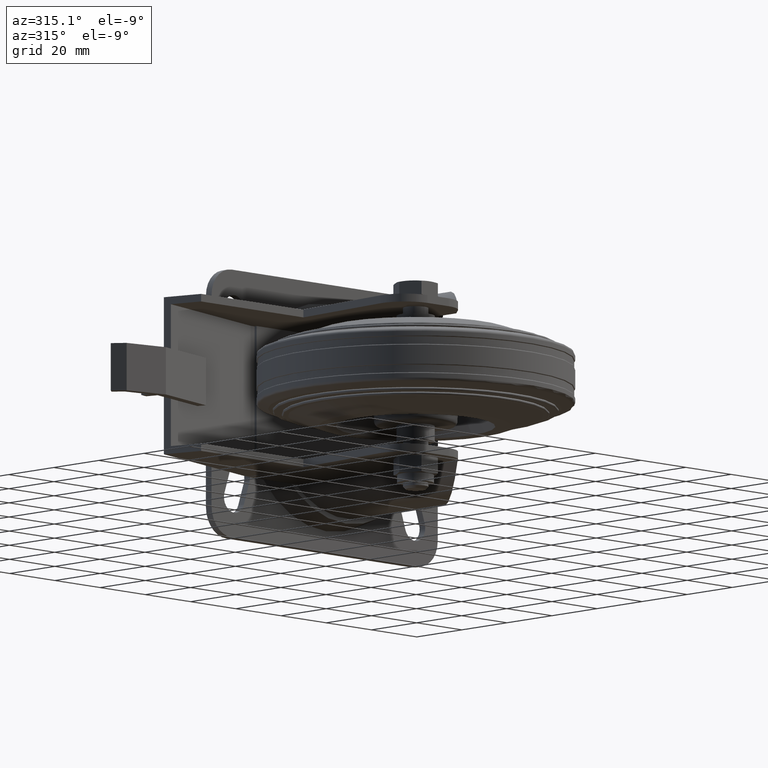
[diagram: clean part render]
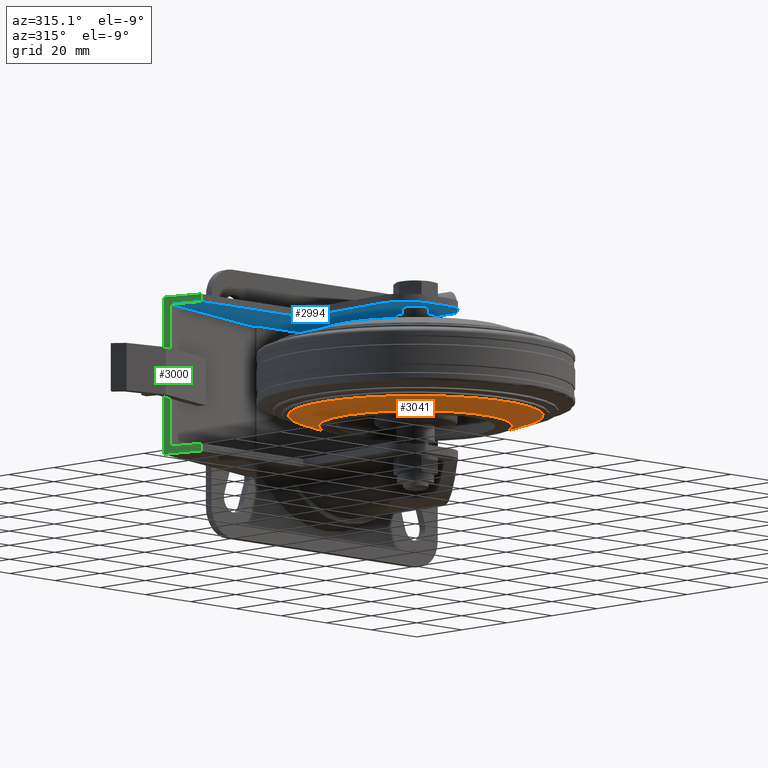
[diagram: same view with three faces highlighted in distinct colors, each labeled with its STEP entity id]
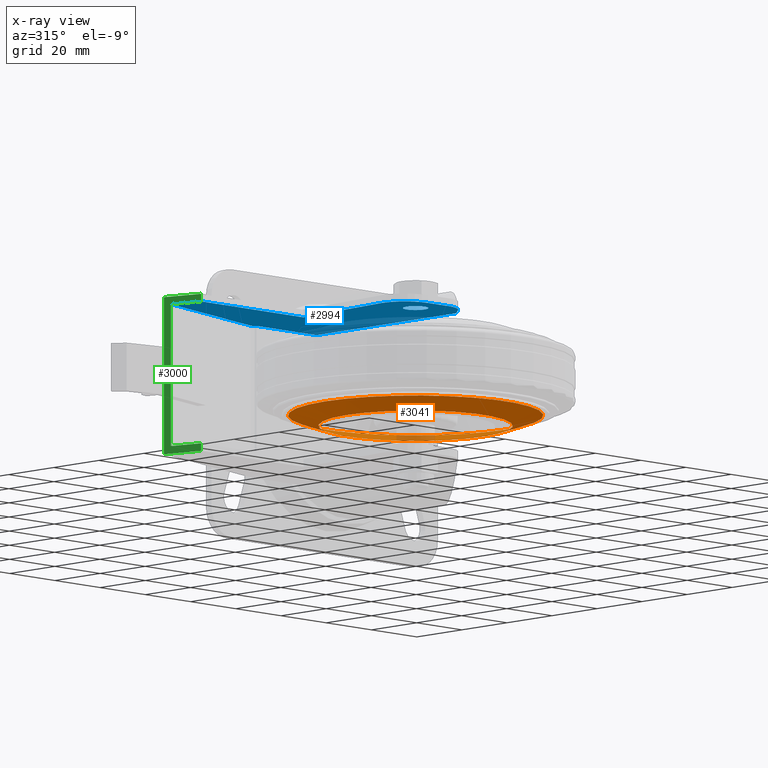
[diagram: x-ray of the same camera — body ghosted, the three highlighted faces saturated]
A machine part, auxiliary view with three faces highlighted in distinct colors.
The next image is the same camera in x-ray (body ghosted, the three faces saturated) — at least one of them is partly hidden behind the body in this view.
Their STEP definitions:

[orange] entity #3041 — the highlighted conical surface has half-angle 71 deg.
#422=LINE('',#5389,#616);
#616=VECTOR('',#4370,30.4746766361272);
#822=FACE_OUTER_BOUND('',#1042,.T.);
#1042=EDGE_LOOP('',(#2748,#2749,#2750,#2751,#2752));
#1213=CIRCLE('',#3487,30.4746766361272);
#1214=CIRCLE('',#3488,30.4746766361272);
#1215=CIRCLE('',#3490,40.);
#1539=VERTEX_POINT('',#5381);
#1540=VERTEX_POINT('',#5383);
#1541=VERTEX_POINT('',#5387);
#1945=EDGE_CURVE('',#1539,#1540,#1213,.T.);
#1946=EDGE_CURVE('',#1540,#1539,#1214,.T.);
#1947=EDGE_CURVE('',#1541,#1541,#1215,.T.);
#1948=EDGE_CURVE('',#1541,#1540,#422,.T.);
#2748=ORIENTED_EDGE('',*,*,#1947,.T.);
#2749=ORIENTED_EDGE('',*,*,#1948,.T.);
#2750=ORIENTED_EDGE('',*,*,#1945,.F.);
#2751=ORIENTED_EDGE('',*,*,#1946,.F.);
#2752=ORIENTED_EDGE('',*,*,#1948,.F.);
#2874=CONICAL_SURFACE('',#3489,30.4746766361272,1.23918376891597);
#3041=ADVANCED_FACE('',(#822),#2874,.T.);
#3487=AXIS2_PLACEMENT_3D('',#5384,#4362,#4363);
#3488=AXIS2_PLACEMENT_3D('',#5385,#4364,#4365);
#3489=AXIS2_PLACEMENT_3D('',#5386,#4366,#4367);
#3490=AXIS2_PLACEMENT_3D('',#5388,#4368,#4369);
#4362=DIRECTION('center_axis',(-5.71914493359824E-17,0.,-1.));
#4363=DIRECTION('ref_axis',(-1.,0.,5.71914493359824E-17));
#4364=DIRECTION('center_axis',(-5.71914493359824E-17,0.,-1.));
#4365=DIRECTION('ref_axis',(-1.,0.,5.71914493359824E-17));
#4366=DIRECTION('center_axis',(5.71914493359824E-17,0.,1.));
#4367=DIRECTION('ref_axis',(1.,0.,-5.71914493359824E-17));
#4368=DIRECTION('center_axis',(-5.71914493359824E-17,0.,-1.));
#4369=DIRECTION('ref_axis',(-1.,0.,5.71914493359824E-17));
#4370=DIRECTION('',(0.945518575599316,1.15792629714207E-16,-0.32556815445716));
#5381=CARTESIAN_POINT('',(30.4746766361272,-3.73207151974838E-15,-14.836555726798));
#5383=CARTESIAN_POINT('',(-30.4746766361272,0.,-14.8365557267979));
#5384=CARTESIAN_POINT('Origin',(-8.48524125169644E-16,0.,-14.836555726798));
#5385=CARTESIAN_POINT('Origin',(-8.48524125169644E-16,0.,-14.836555726798));
#5386=CARTESIAN_POINT('Origin',(-8.48524125169644E-16,0.,-14.836555726798));
#5387=CARTESIAN_POINT('',(-40.,0.,-11.5567238671033));
#5388=CARTESIAN_POINT('Origin',(-6.6094578753538E-16,0.,-11.5567238671033));
#5389=CARTESIAN_POINT('',(-30.4746766361272,-3.73207151974838E-15,-14.836555726798));

[blue] entity #2994 — the highlighted planar face has unit normal (0, 0, -1).
#134=FACE_BOUND('',#987,.T.);
#200=PLANE('',#3407);
#262=LINE('',#4833,#456);
#275=LINE('',#4869,#469);
#280=LINE('',#4886,#474);
#286=LINE('',#4905,#480);
#353=LINE('',#5173,#547);
#354=LINE('',#5175,#548);
#355=LINE('',#5177,#549);
#356=LINE('',#5179,#550);
#357=LINE('',#5181,#551);
#358=LINE('',#5182,#552);
#456=VECTOR('',#3766,1000.);
#469=VECTOR('',#3795,1000.);
#474=VECTOR('',#3810,1000.);
#480=VECTOR('',#3834,1000.);
#547=VECTOR('',#4135,1000.);
#548=VECTOR('',#4136,1000.);
#549=VECTOR('',#4137,1000.);
#550=VECTOR('',#4138,1000.);
#551=VECTOR('',#4139,1000.);
#552=VECTOR('',#4140,1000.);
#775=FACE_OUTER_BOUND('',#986,.T.);
#986=EDGE_LOOP('',(#2523,#2524,#2525,#2526,#2527,#2528,#2529,#2530,#2531,
#2532,#2533,#2534));
#987=EDGE_LOOP('',(#2535));
#1109=CIRCLE('',#3271,10.);
#1113=CIRCLE('',#3284,10.);
#1181=CIRCLE('',#3408,4.);
#1366=VERTEX_POINT('',#4830);
#1367=VERTEX_POINT('',#4832);
#1374=VERTEX_POINT('',#4850);
#1375=VERTEX_POINT('',#4851);
#1382=VERTEX_POINT('',#4868);
#1389=VERTEX_POINT('',#4884);
#1393=VERTEX_POINT('',#4904);
#1477=VERTEX_POINT('',#5172);
#1478=VERTEX_POINT('',#5174);
#1479=VERTEX_POINT('',#5176);
#1480=VERTEX_POINT('',#5178);
#1481=VERTEX_POINT('',#5180);
#1482=VERTEX_POINT('',#5183);
#1677=EDGE_CURVE('',#1366,#1367,#262,.T.);
#1686=EDGE_CURVE('',#1374,#1375,#1109,.T.);
#1694=EDGE_CURVE('',#1374,#1382,#275,.T.);
#1703=EDGE_CURVE('',#1375,#1389,#280,.T.);
#1708=EDGE_CURVE('',#1389,#1367,#1113,.T.);
#1714=EDGE_CURVE('',#1382,#1393,#286,.F.);
#1844=EDGE_CURVE('',#1477,#1366,#353,.T.);
#1845=EDGE_CURVE('',#1478,#1477,#354,.T.);
#1846=EDGE_CURVE('',#1479,#1478,#355,.T.);
#1847=EDGE_CURVE('',#1480,#1479,#356,.T.);
#1848=EDGE_CURVE('',#1481,#1480,#357,.T.);
#1849=EDGE_CURVE('',#1393,#1481,#358,.T.);
#1850=EDGE_CURVE('',#1482,#1482,#1181,.F.);
#2523=ORIENTED_EDGE('',*,*,#1708,.T.);
#2524=ORIENTED_EDGE('',*,*,#1677,.F.);
#2525=ORIENTED_EDGE('',*,*,#1844,.F.);
#2526=ORIENTED_EDGE('',*,*,#1845,.F.);
#2527=ORIENTED_EDGE('',*,*,#1846,.F.);
#2528=ORIENTED_EDGE('',*,*,#1847,.F.);
#2529=ORIENTED_EDGE('',*,*,#1848,.F.);
#2530=ORIENTED_EDGE('',*,*,#1849,.F.);
#2531=ORIENTED_EDGE('',*,*,#1714,.F.);
#2532=ORIENTED_EDGE('',*,*,#1694,.F.);
#2533=ORIENTED_EDGE('',*,*,#1686,.T.);
#2534=ORIENTED_EDGE('',*,*,#1703,.T.);
#2535=ORIENTED_EDGE('',*,*,#1850,.T.);
#2994=ADVANCED_FACE('',(#775,#134),#200,.T.);
#3271=AXIS2_PLACEMENT_3D('',#4852,#3779,#3780);
#3284=AXIS2_PLACEMENT_3D('',#4895,#3819,#3820);
#3407=AXIS2_PLACEMENT_3D('',#5171,#4133,#4134);
#3408=AXIS2_PLACEMENT_3D('',#5184,#4141,#4142);
#3766=DIRECTION('',(-0.0779525209182045,-0.996957072537477,0.));
#3779=DIRECTION('center_axis',(0.,0.,-1.));
#3780=DIRECTION('ref_axis',(-1.,0.,0.));
#3795=DIRECTION('',(0.639276614650613,0.768976859184235,0.));
#3810=DIRECTION('',(-1.,0.,0.));
#3819=DIRECTION('center_axis',(0.,0.,-1.));
#3820=DIRECTION('ref_axis',(-1.,0.,0.));
#3834=DIRECTION('',(0.,-1.,0.));
#4133=DIRECTION('center_axis',(0.,0.,-1.));
#4134=DIRECTION('ref_axis',(-1.,0.,0.));
#4135=DIRECTION('',(1.,0.,0.));
#4136=DIRECTION('',(0.258819045102521,-0.965925826289068,0.));
#4137=DIRECTION('',(-0.965925826289068,-0.258819045102521,0.));
#4138=DIRECTION('',(-1.,0.,0.));
#4139=DIRECTION('',(0.0779525209182045,0.996957072537477,0.));
#4140=DIRECTION('',(-1.,0.,0.));
#4141=DIRECTION('center_axis',(0.,0.,-1.));
#4142=DIRECTION('ref_axis',(-1.,0.,0.));
#4830=CARTESIAN_POINT('',(-11.7592850975975,38.,22.5));
#4832=CARTESIAN_POINT('',(-14.6695707253748,0.779525209182047,22.5));
#4833=CARTESIAN_POINT('',(-14.6695707253748,0.779525209182044,22.5));
#4850=CARTESIAN_POINT('',(12.3897685918423,-6.39276614650614,22.5));
#4851=CARTESIAN_POINT('',(4.69999999999999,-9.99999999999999,22.5));
#4852=CARTESIAN_POINT('Origin',(4.69999999999999,6.93889390390723E-15,22.5));
#4868=CARTESIAN_POINT('',(16.408739718026,-1.55840223745891,22.5));
#4869=CARTESIAN_POINT('',(68.,60.5,22.5));
#4884=CARTESIAN_POINT('',(-4.7,-9.99999999999999,22.5));
#4886=CARTESIAN_POINT('',(25.,-9.99999999999999,22.5));
#4895=CARTESIAN_POINT('Origin',(-4.7,1.73472347597681E-15,22.5));
#4904=CARTESIAN_POINT('',(16.408739718026,60.5,22.5));
#4905=CARTESIAN_POINT('',(16.408739718026,-10.,22.5));
#5171=CARTESIAN_POINT('Origin',(25.,60.5,22.5));
#5172=CARTESIAN_POINT('',(-57.,38.,22.5));
#5173=CARTESIAN_POINT('',(-57.,38.,22.5));
#5174=CARTESIAN_POINT('',(-59.8362918888483,48.5851854342773,22.5));
#5175=CARTESIAN_POINT('',(-59.8362918888483,48.5851854342773,22.5));
#5176=CARTESIAN_POINT('',(-11.6375477592407,61.5,22.5));
#5177=CARTESIAN_POINT('',(-11.6375477592407,61.5,22.5));
#5178=CARTESIAN_POINT('',(-9.92180955121789,61.5,22.5));
#5179=CARTESIAN_POINT('',(-9.92180955121789,61.5,22.5));
#5180=CARTESIAN_POINT('',(-10.,60.5,22.5));
#5181=CARTESIAN_POINT('',(-11.7592850975975,38.,22.5));
#5182=CARTESIAN_POINT('',(25.,60.5,22.5));
#5183=CARTESIAN_POINT('',(4.,-4.89858719658941E-16,22.5));
#5184=CARTESIAN_POINT('Origin',(0.,0.,22.5));

[green] entity #3000 — the highlighted planar face has unit normal (0.9659, 0.2588, 0).
#204=PLANE('',#3415);
#257=LINE('',#4822,#451);
#354=LINE('',#5175,#548);
#363=LINE('',#5194,#557);
#368=LINE('',#5208,#562);
#371=LINE('',#5214,#565);
#372=LINE('',#5216,#566);
#373=LINE('',#5217,#567);
#374=LINE('',#5218,#568);
#375=LINE('',#5220,#569);
#376=LINE('',#5221,#570);
#451=VECTOR('',#3759,1000.);
#548=VECTOR('',#4136,1000.);
#557=VECTOR('',#4149,1000.);
#562=VECTOR('',#4164,1000.);
#565=VECTOR('',#4169,1000.);
#566=VECTOR('',#4170,1000.);
#567=VECTOR('',#4171,1000.);
#568=VECTOR('',#4172,1000.);
#569=VECTOR('',#4173,1000.);
#570=VECTOR('',#4174,1000.);
#781=FACE_OUTER_BOUND('',#994,.T.);
#994=EDGE_LOOP('',(#2565,#2566,#2567,#2568,#2569,#2570,#2571,#2572,#2573,
#2574));
#1360=VERTEX_POINT('',#4818);
#1362=VERTEX_POINT('',#4821);
#1477=VERTEX_POINT('',#5172);
#1478=VERTEX_POINT('',#5174);
#1486=VERTEX_POINT('',#5192);
#1489=VERTEX_POINT('',#5205);
#1490=VERTEX_POINT('',#5207);
#1492=VERTEX_POINT('',#5213);
#1493=VERTEX_POINT('',#5215);
#1494=VERTEX_POINT('',#5219);
#1672=EDGE_CURVE('',#1360,#1362,#257,.T.);
#1845=EDGE_CURVE('',#1478,#1477,#354,.T.);
#1855=EDGE_CURVE('',#1486,#1360,#363,.T.);
#1861=EDGE_CURVE('',#1490,#1489,#368,.T.);
#1864=EDGE_CURVE('',#1478,#1492,#371,.T.);
#1865=EDGE_CURVE('',#1493,#1477,#372,.T.);
#1866=EDGE_CURVE('',#1490,#1493,#373,.T.);
#1867=EDGE_CURVE('',#1489,#1362,#374,.T.);
#1868=EDGE_CURVE('',#1494,#1486,#375,.T.);
#1869=EDGE_CURVE('',#1492,#1494,#376,.T.);
#2565=ORIENTED_EDGE('',*,*,#1864,.F.);
#2566=ORIENTED_EDGE('',*,*,#1845,.T.);
#2567=ORIENTED_EDGE('',*,*,#1865,.F.);
#2568=ORIENTED_EDGE('',*,*,#1866,.F.);
#2569=ORIENTED_EDGE('',*,*,#1861,.T.);
#2570=ORIENTED_EDGE('',*,*,#1867,.T.);
#2571=ORIENTED_EDGE('',*,*,#1672,.F.);
#2572=ORIENTED_EDGE('',*,*,#1855,.F.);
#2573=ORIENTED_EDGE('',*,*,#1868,.F.);
#2574=ORIENTED_EDGE('',*,*,#1869,.F.);
#3000=ADVANCED_FACE('',(#781),#204,.F.);
#3415=AXIS2_PLACEMENT_3D('',#5212,#4167,#4168);
#3759=DIRECTION('',(0.,0.,-1.));
#4136=DIRECTION('',(0.258819045102521,-0.965925826289068,0.));
#4149=DIRECTION('',(0.258819045102521,-0.965925826289068,0.));
#4164=DIRECTION('',(0.,0.,-1.));
#4167=DIRECTION('center_axis',(0.965925826289068,0.258819045102521,0.));
#4168=DIRECTION('ref_axis',(-0.258819045102521,0.965925826289068,0.));
#4169=DIRECTION('',(0.,0.,-1.));
#4170=DIRECTION('',(0.,0.,-1.));
#4171=DIRECTION('',(0.258819045102521,-0.965925826289068,0.));
#4172=DIRECTION('',(0.258819045102521,-0.965925826289068,0.));
#4173=DIRECTION('',(0.,0.,-1.));
#4174=DIRECTION('',(0.,0.,-1.));
#4818=CARTESIAN_POINT('',(-57.,38.,-22.5));
#4821=CARTESIAN_POINT('',(-57.,38.,-24.9));
#4822=CARTESIAN_POINT('',(-57.,38.,24.9));
#5172=CARTESIAN_POINT('',(-57.,38.,22.5));
#5174=CARTESIAN_POINT('',(-59.8362918888483,48.5851854342773,22.5));
#5175=CARTESIAN_POINT('',(-59.8362918888483,48.5851854342773,22.5));
#5192=CARTESIAN_POINT('',(-59.8362918888483,48.5851854342773,-22.5));
#5194=CARTESIAN_POINT('',(-59.8362918888483,48.5851854342773,-22.5));
#5205=CARTESIAN_POINT('',(-60.4833395016046,51.,-24.9));
#5207=CARTESIAN_POINT('',(-60.4833395016046,51.,24.9));
#5208=CARTESIAN_POINT('',(-60.4833395016046,51.,24.9));
#5212=CARTESIAN_POINT('Origin',(-60.4833395016046,51.,24.9));
#5213=CARTESIAN_POINT('',(-59.8362918888483,48.5851854342773,7.5));
#5214=CARTESIAN_POINT('',(-59.8362918888483,48.5851854342773,22.5));
#5215=CARTESIAN_POINT('',(-57.,38.,24.9));
#5216=CARTESIAN_POINT('',(-57.,38.,24.9));
#5217=CARTESIAN_POINT('',(-60.4833395016046,51.,24.9));
#5218=CARTESIAN_POINT('',(-60.4833395016046,51.,-24.9));
#5219=CARTESIAN_POINT('',(-59.8362918888483,48.5851854342773,-7.49999999999999));
#5220=CARTESIAN_POINT('',(-59.8362918888483,48.5851854342773,22.5));
#5221=CARTESIAN_POINT('',(-59.8362918888483,48.5851854342773,22.5));